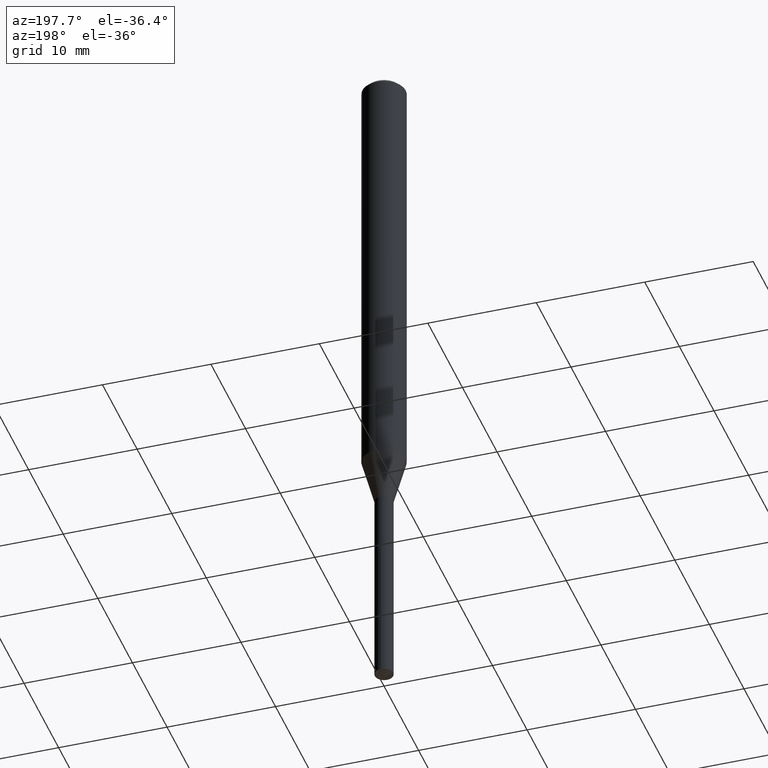
[diagram: clean part render]
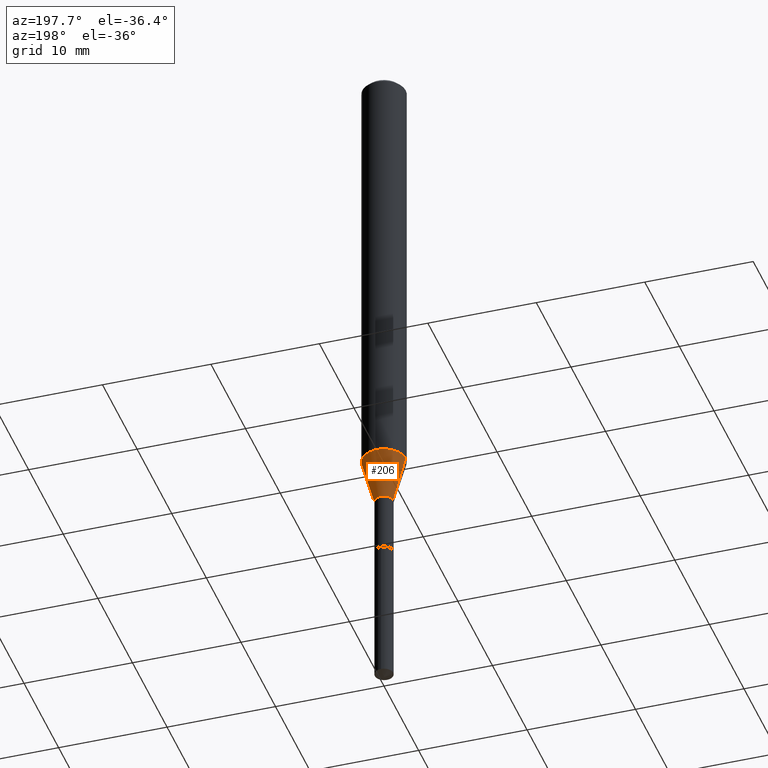
[diagram: same view with one face highlighted and labeled with its STEP entity id]
A machine part, auxiliary view. The second image highlights one B-rep face of the part: STEP entity #206.
In plain terms, the highlighted conical surface has half-angle 15 deg.
Its self-contained STEP definition (entity closure, byte-faithful):
#19 = ORIENTED_EDGE ( 'NONE', *, *, #308, .T. ) ;
#21 = VERTEX_POINT ( 'NONE', #375 ) ;
#33 = AXIS2_PLACEMENT_3D ( 'NONE', #465, #39, #45 ) ;
#39 = DIRECTION ( 'NONE',  ( -2.445468806185136597E-29, 3.491481338843145583E-15, 1.000000000000000000 ) ) ;
#45 = DIRECTION ( 'NONE',  ( 1.000000000000000000, -6.982962677686255667E-15, 0.000000000000000000 ) ) ;
#46 = FACE_OUTER_BOUND ( 'NONE', #99, .T. ) ;
#48 = CIRCLE ( 'NONE', #216, 0.07875000000000019484 ) ;
#49 = EDGE_CURVE ( 'NONE', #107, #176, #412, .T. ) ;
#53 = CARTESIAN_POINT ( 'NONE',  ( 3.904284117565225006E-29, -5.574282977375527399E-15, -1.596538098417129126 ) ) ;
#69 = DIRECTION ( 'NONE',  ( 0.2588190451025211836, 1.565188264969622559E-15, 0.9659258262890679791 ) ) ;
#88 = AXIS2_PLACEMENT_3D ( 'NONE', #171, #248, #329 ) ;
#95 = VERTEX_POINT ( 'NONE', #424 ) ;
#99 = EDGE_LOOP ( 'NONE', ( #139, #19, #379, #478 ) ) ;
#107 = VERTEX_POINT ( 'NONE', #387 ) ;
#135 = CARTESIAN_POINT ( 'NONE',  ( -0.03344999999999997281, -5.926882906749703792E-15, -1.765599999999999836 ) ) ;
#139 = ORIENTED_EDGE ( 'NONE', *, *, #339, .T. ) ;
#140 = LINE ( 'NONE', #135, #454 ) ;
#171 = CARTESIAN_POINT ( 'NONE',  ( 4.317719724200476827E-29, -6.164559451861457160E-15, -1.765599999999999836 ) ) ;
#176 = VERTEX_POINT ( 'NONE', #352 ) ;
#206 = ADVANCED_FACE ( 'NONE', ( #46 ), #293, .T. ) ;
#216 = AXIS2_PLACEMENT_3D ( 'NONE', #53, #360, #402 ) ;
#220 = DIRECTION ( 'NONE',  ( -0.2588190451025211836, 5.211531920934547886E-15, 0.9659258262890679791 ) ) ;
#248 = DIRECTION ( 'NONE',  ( -2.445468806185136597E-29, 3.491481338843145583E-15, 1.000000000000000000 ) ) ;
#293 = CONICAL_SURFACE ( 'NONE', #33, 0.03344999999999997281, 0.2617993877991499074 ) ;
#308 = EDGE_CURVE ( 'NONE', #95, #21, #140, .T. ) ;
#310 = CARTESIAN_POINT ( 'NONE',  ( 0.03344999999999997281, -6.398139553430062226E-15, -1.765599999999999836 ) ) ;
#329 = DIRECTION ( 'NONE',  ( 1.000000000000000000, -6.982962677686255667E-15, 0.000000000000000000 ) ) ;
#336 = VECTOR ( 'NONE', #69, 39.37007874015748854 ) ;
#339 = EDGE_CURVE ( 'NONE', #107, #95, #423, .T. ) ;
#352 = CARTESIAN_POINT ( 'NONE',  ( 0.07875000000000019484, -6.124191288243322322E-15, -1.596538098417129126 ) ) ;
#360 = DIRECTION ( 'NONE',  ( -2.445468806185136597E-29, 3.491481338843145583E-15, 1.000000000000000000 ) ) ;
#365 = EDGE_CURVE ( 'NONE', #176, #21, #48, .T. ) ;
#375 = CARTESIAN_POINT ( 'NONE',  ( -0.07875000000000019484, -5.014730572964447019E-15, -1.596538098417129126 ) ) ;
#379 = ORIENTED_EDGE ( 'NONE', *, *, #365, .F. ) ;
#387 = CARTESIAN_POINT ( 'NONE',  ( 0.03344999999999997281, -6.398139553430062226E-15, -1.765599999999999836 ) ) ;
#402 = DIRECTION ( 'NONE',  ( 1.000000000000000000, -6.982962677686269077E-15, 0.000000000000000000 ) ) ;
#412 = LINE ( 'NONE', #310, #336 ) ;
#423 = CIRCLE ( 'NONE', #88, 0.03344999999999997281 ) ;
#424 = CARTESIAN_POINT ( 'NONE',  ( -0.03344999999999997281, -6.307803520817490859E-15, -1.765599999999999836 ) ) ;
#454 = VECTOR ( 'NONE', #220, 39.37007874015748854 ) ;
#465 = CARTESIAN_POINT ( 'NONE',  ( 4.317719724200476827E-29, -6.164559451861457160E-15, -1.765599999999999836 ) ) ;
#478 = ORIENTED_EDGE ( 'NONE', *, *, #49, .F. ) ;